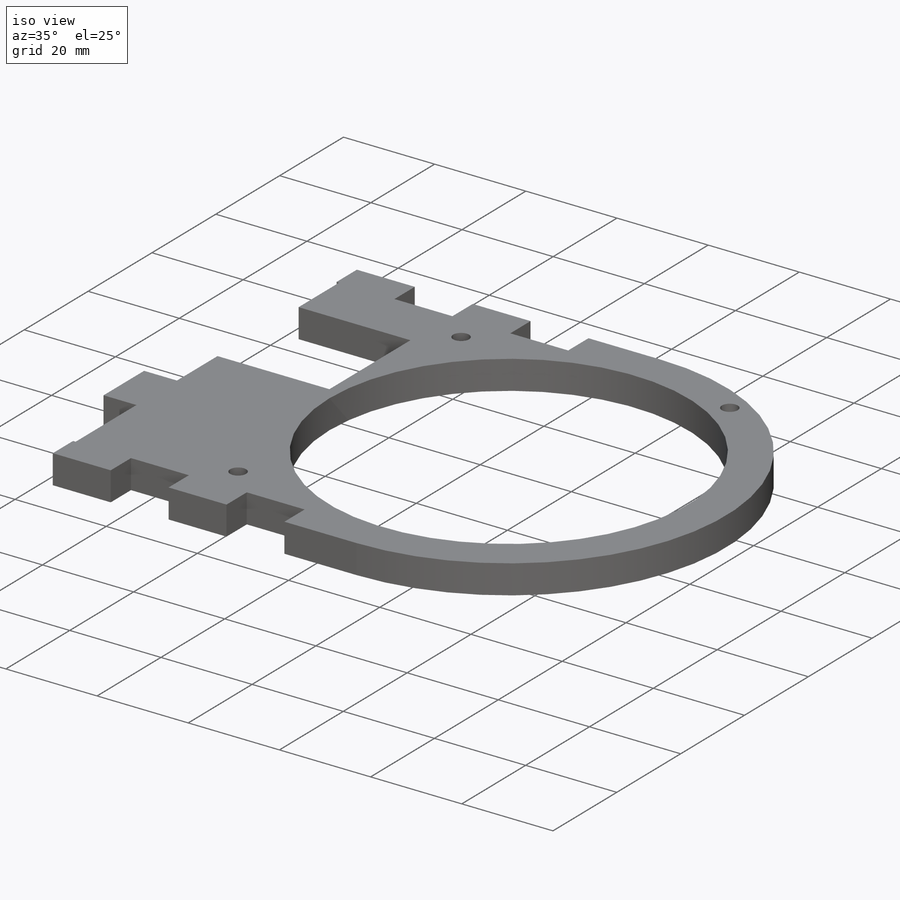
[diagram: iso view]
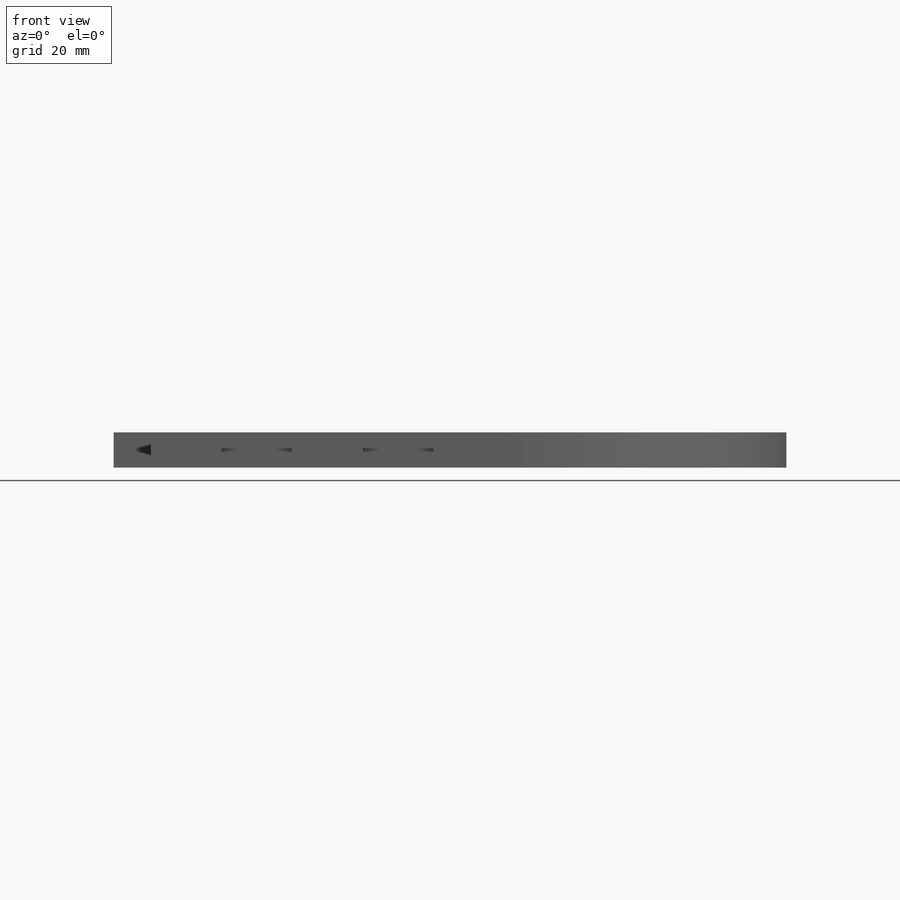
[diagram: front view]
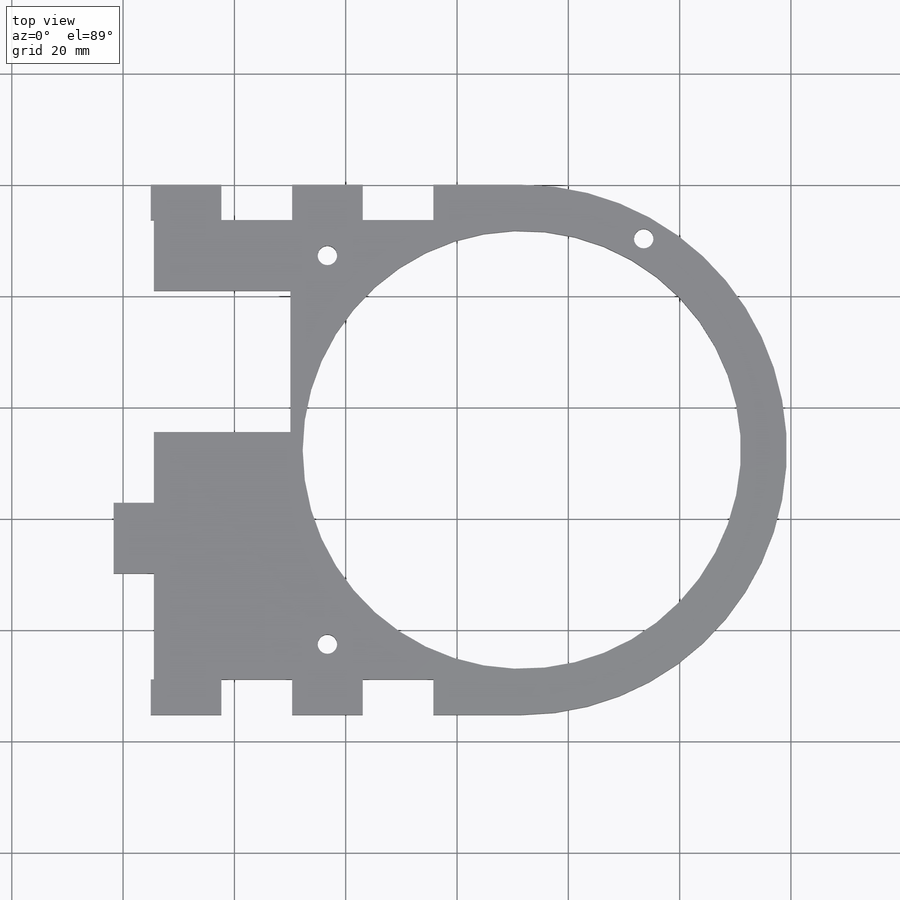
[diagram: top view]
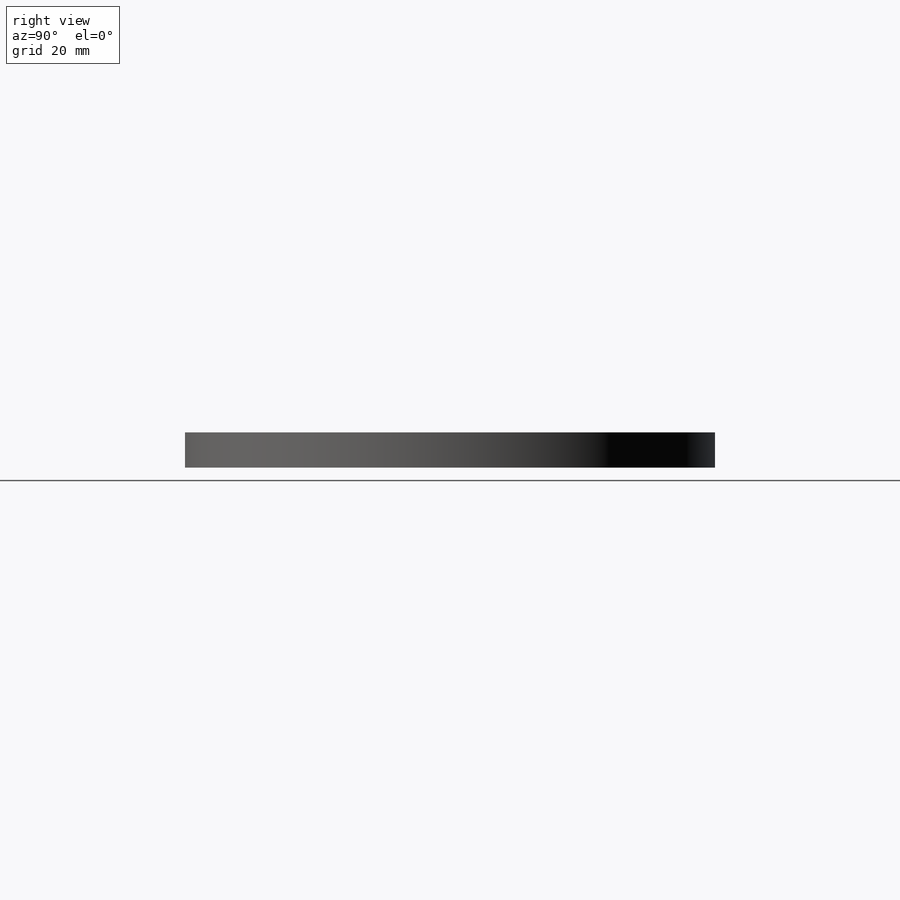
[diagram: right view]
SOLIDWORKS PART (.sldprt)
format: sldprt  version: not decoded by parser v0  size: 359,424 bytes
history: native  units: mm
features: sketch x9, cut_extrude x7, material x1, extrude x1, pattern_linear x1 (+13 scaffold rows collapsed)
feature tree (32):
  scaffold x13  (default folders/planes/origin — collapsed)
  material  "Material <not specified>"
  sketch  "Sketch1"  dims[c1.D9=76.2mm c1.D14=76.2mm c1.D1=419.1mm c1.D2=101.6mm c1.D3=19.05mm c1.D4=19.05mm c1.D5=~447.578732mm c2.D5=84.5deg c2.D6=40.0mm c2.D7=400.0mm c2.D8=95.25mm c2.D9=10.0mm c2.D10=20.0mm c2.D11=114.3mm c2.D12=200.025mm c2.D13=95.25mm c2.D14=6.35mm c2.D15=127.0mm c2.D16=95.25mm c2.D17=209.55mm c3.D12=95.25mm c3.D10=9.525mm c3.D13=9.525mm c3.D14=76.2mm c3.D9=76.2mm c4.D14=~29.170225mm c4.D9=9.525mm c4.D16=82.55mm c4.D12=76.2mm c5.D14=25.4mm c5.D16=9.525mm c5.D18=6.35mm c5.D19=50.8mm c5.D20=44.45mm c5.D21=6.35mm c5.D22=50.8mm c6.D22=~64.798876deg c7.D22=44.7mm c7.D23=12.7mm c7.D24=6.35mm]
  sketch  "Sketch2"  dims[D1=6.35mm D2=6.35mm]
  extrude  "Boss-Extrude1"  Depth=95.25mm
  sketch  "Sketch3"  dims[D1=78.74mm D2=47.625mm]
  cut_extrude  "Cut-Extrude2"  [1 undecoded]
  sketch  "Sketch4"
  cut_extrude  "Cut-Extrude3"  [1 undecoded]
  sketch  "Sketch5"  dims[D1=31.75mm D2=25.4mm D3=31.75mm]
  cut_extrude  "Cut-Extrude4"  [1 undecoded]
  sketch  "Sketch6"  dims[D1=12.7mm D2=12.7mm D3=6.35mm]
  cut_extrude  "Cut-Extrude5"  [1 undecoded]
  pattern_linear  "LPattern1"  Count1=3 Count2=1 Spacing1=25.4mm Spacing2=2.54mm
  sketch  "Sketch7"  dims[D1=25.4mm D2=12.7mm D3=12.7mm]
  cut_extrude  "Cut-Extrude6"  [1 undecoded]
  sketch  "Sketch8"  dims[D2=3.5mm D1=69.85mm]
  cut_extrude  "Cut-Extrude7"  [1 undecoded]
  sketch  "Sketch10"  dims[c1.D3=3.5mm c1.D1=~33.416121mm c2.D1=30.0deg c2.D2=3.81mm]
  cut_extrude  "Cut-Extrude9"  [1 undecoded]
decode coverage: 10 of 18 modeling features carry decoded parameters
note: ~ marks probable driven/reference dimensions
note: 7 parameter values undecoded
summary: no parameter record found for 7 features
note: suppression state not decoded; provenance and decode notes live in map.json
